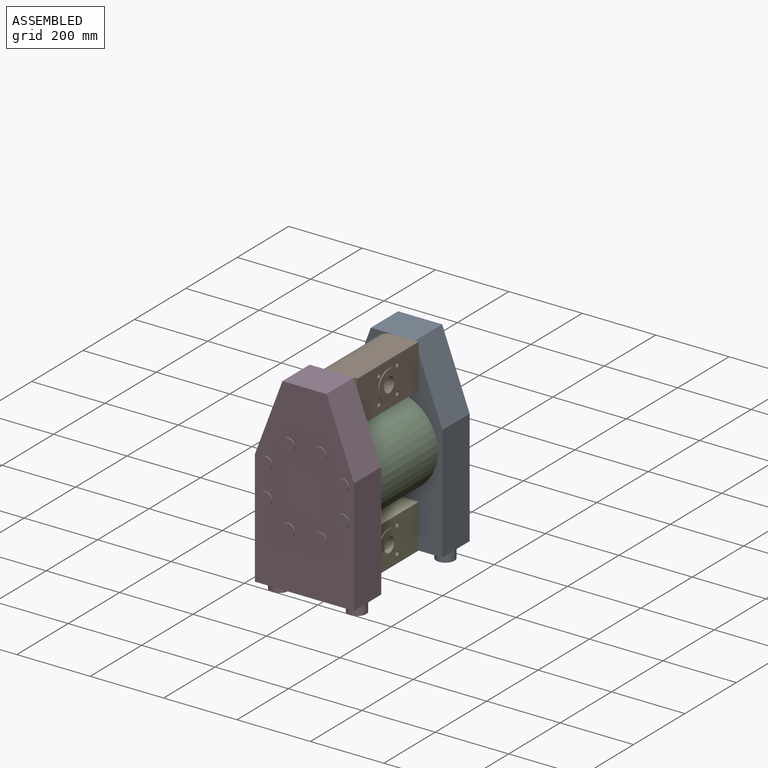
[diagram: assembled view]
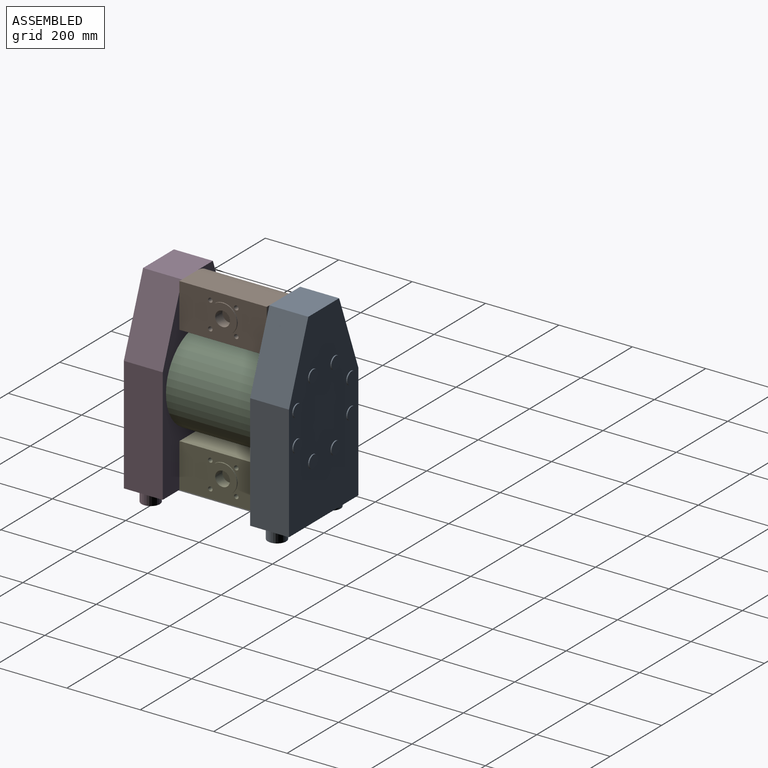
[diagram: assembled view, second angle]
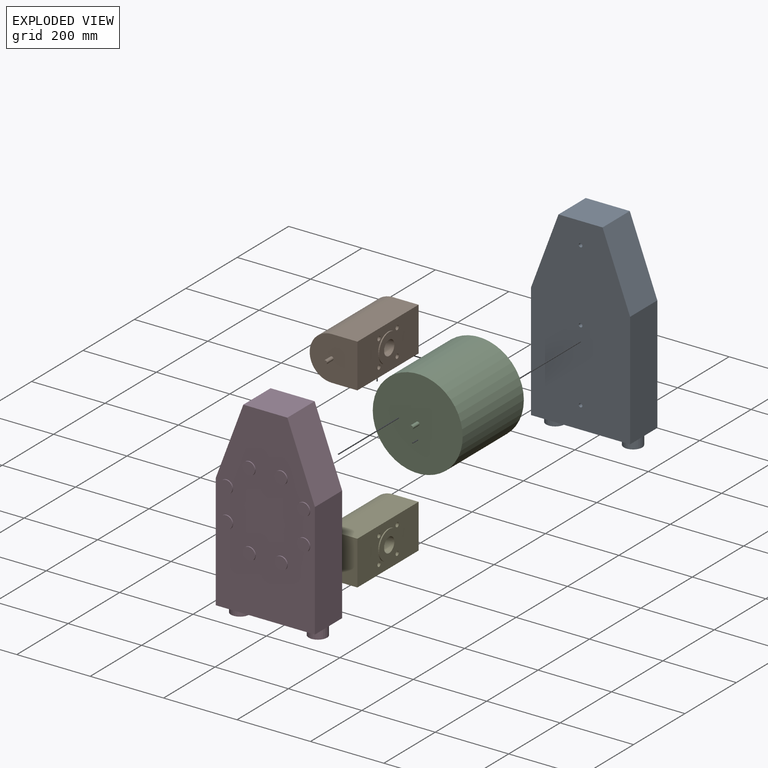
[diagram: exploded view]
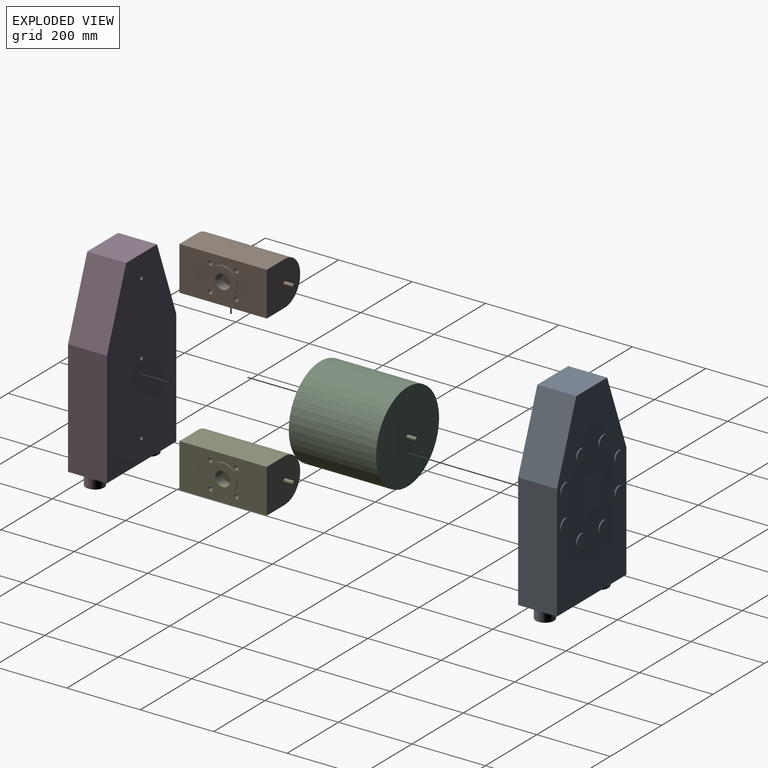
[diagram: exploded view, second angle]
ASSEMBLY  parts=5 mates=8
PART A: 34 faces, bbox 270x109x543 mm
  f0: plane 120x106mm, normal (0,0,1), area 12720mm2, adj f1,f5,f6,f7
  f1: plane 200x106mm, normal (-0.94,0,0.35), area 22641.6mm2, adj f0,f2,f6,f7
  f2: plane 314x106mm, normal (-1,0,0), area 33284mm2, adj f1,f3,f6,f7
  f3: plane 270x106mm, normal (0,0,-1), area 24693mm2, adj f2,f4,f6,f7,f30,f32
  f4: plane 314x106mm, normal (1,0,0), area 33284mm2, adj f3,f5,f6,f7
  f5: plane 200x106mm, normal (0.94,0,0.35), area 22641.6mm2, adj f0,f4,f6,f7
  f6: plane 514x270mm, normal (0,1,0), area 123544.4mm2, adj f0,f1,f2,f3,f4,f5,f24,f26
  f7: plane 514x270mm, normal (0,-1,0), area 116083.1mm2, adj f0,f1,f2,f3,f4,f5,f8,f10
  f8: cylinder r=17.5mm len=35mm, axis (0,1,0), area 329.9mm2, adj f7,f9
  f9: plane 35x35mm, normal (0,-1,0), area 962.1mm2, adj f8
  f10: cylinder r=17.5mm len=35mm, axis (0,1,0), area 329.9mm2, adj f7,f11
  f11: plane 35x35mm, normal (0,-1,0), area 962.1mm2, adj f10
  f12: cylinder r=17.5mm len=35mm, axis (0,1,0), area 329.9mm2, adj f7,f13
  f13: plane 35x35mm, normal (0,-1,0), area 962.1mm2, adj f12
  f14: cylinder r=17.5mm len=35mm, axis (0,1,0), area 329.9mm2, adj f7,f15
  f15: plane 35x35mm, normal (0,-1,0), area 962.1mm2, adj f14
  f16: cylinder r=17.5mm len=35mm, axis (0,1,0), area 329.9mm2, adj f7,f17
  f17: plane 35x35mm, normal (0,-1,0), area 962.1mm2, adj f16
  f18: cylinder r=17.5mm len=35mm, axis (0,1,0), area 329.9mm2, adj f7,f19
  f19: plane 35x35mm, normal (0,-1,0), area 962.1mm2, adj f18
  f20: cylinder r=17.5mm len=35mm, axis (0,1,0), area 329.9mm2, adj f7,f21
  f21: plane 35x35mm, normal (0,-1,0), area 962.1mm2, adj f20
  f22: cylinder r=17.5mm len=35mm, axis (0,1,0), area 329.9mm2, adj f7,f23
  f23: plane 35x35mm, normal (0,-1,0), area 962.1mm2, adj f22
  f24: cylinder r=5mm len=25mm, axis (0,1,0), area 785.4mm2, adj f6,f25
  f25: plane 10x10mm, normal (0,1,0), area 78.5mm2, adj f24
  f26: cylinder r=5mm len=25mm, axis (0,1,0), area 785.4mm2, adj f6,f27
  f27: plane 10x10mm, normal (0,1,0), area 78.5mm2, adj f26
  f28: cylinder r=5mm len=25mm, axis (0,1,0), area 785.4mm2, adj f6,f29
  f29: plane 10x10mm, normal (0,1,0), area 78.5mm2, adj f28
  f30: cylinder r=25mm len=50mm, axis (0,0,1), area 4555.3mm2, adj f3,f31
  f31: plane 50x50mm, normal (0,0,-1), area 1963.5mm2, adj f30
  f32: cylinder r=25mm len=50mm, axis (0,0,1), area 4555.3mm2, adj f3,f33
  f33: plane 50x50mm, normal (0,0,-1), area 1963.5mm2, adj f32
PART B: 22 faces, bbox 120x288x133 mm
  f0: plane 238x70mm, normal (1,0,0), area 16660mm2, adj f1,f3,f4,f5
  f1: plane 238x120mm, normal (0,0,1), area 23329.2mm2, adj f0,f2,f4,f5,f10,f12,f14,f16
  f2: plane 238x70mm, normal (-1,0,0), area 16660mm2, adj f1,f3,f4,f5
  f3: cylinder r=60mm len=238mm, axis (0,1,0), area 44861.9mm2, adj f0,f2,f4,f5
  f4: plane 130x120mm, normal (0,-1,0), area 13976.3mm2, adj f0,f1,f2,f3,f8
  f5: plane 130x120mm, normal (0,1,0), area 13976.3mm2, adj f0,f1,f2,f3,f7
  f6: plane 10x10mm, normal (0,1,0), area 78.5mm2, adj f7
  f7: cylinder r=5mm len=25mm, axis (0,1,0), area 785.4mm2, adj f5,f6
  f8: cylinder r=5mm len=25mm, axis (0,1,0), area 785.4mm2, adj f4,f9
  f9: plane 10x10mm, normal (0,-1,0), area 78.5mm2, adj f8
  f10: cylinder r=6mm len=25mm, axis (0,0,1), area 942.5mm2, adj f1,f11
  f11: plane 12x12mm, normal (0,0,1), area 113.1mm2, adj f10
  f12: cylinder r=6mm len=25mm, axis (0,0,1), area 942.5mm2, adj f1,f13
  f13: plane 12x12mm, normal (0,0,1), area 113.1mm2, adj f12
  f14: cylinder r=6mm len=25mm, axis (0,0,1), area 942.5mm2, adj f1,f15
  f15: plane 12x12mm, normal (0,0,1), area 113.1mm2, adj f14
  f16: cylinder r=6mm len=25mm, axis (0,0,1), area 942.5mm2, adj f1,f17
  f17: plane 12x12mm, normal (0,0,1), area 113.1mm2, adj f16
  f18: cylinder r=39mm len=78mm, axis (0,0,-1), area 735.1mm2, adj f1,f19
  f19: plane 78x78mm, normal (0,0,1), area 3521.7mm2, adj f18,f21
  f20: plane 40x40mm, normal (0,0,1), area 1256.6mm2, adj f21
  f21: cylinder r=20mm len=40mm, axis (0,0,1), area 3518.6mm2, adj f19,f20
PART C: 14 faces, bbox 262.5x288x245 mm
  f0: cylinder r=122.5mm len=245mm, axis (0,1,0), area 182506mm2, adj f1,f2,f7,f9,f10,f11
  f1: plane 245x245mm, normal (0,-1,0), area 47065mm2, adj f0,f5
  f2: plane 245x245mm, normal (0,1,0), area 47065mm2, adj f0,f4
  f3: plane 10x10mm, normal (0,1,0), area 78.5mm2, adj f4
  f4: cylinder r=5mm len=25mm, axis (0,1,0), area 785.4mm2, adj f2,f3
  f5: cylinder r=5mm len=25mm, axis (0,1,0), area 785.4mm2, adj f1,f6
  f6: plane 10x10mm, normal (0,-1,0), area 78.5mm2, adj f5
  f7: cylinder r=15mm len=26.94mm, axis (-1,0,0), area 606.5mm2, adj f0,f10,f11,f12
  f8: cylinder r=6.35mm len=17.66mm, axis (-1,0,0), area 701.5mm2, adj f12,f13
  f9: cylinder r=15mm len=26.94mm, axis (-1,0,0), area 606.5mm2, adj f0,f10,f11,f12
  f10: plane 17.68x13.19mm, normal (0,1,0), area 231.7mm2, adj f0,f7,f9,f12
  f11: plane 17.68x13.19mm, normal (0,-1,0), area 231.7mm2, adj f0,f7,f9,f12
  f12: plane 30x26.94mm, normal (1,0,0), area 553mm2, adj f7,f8,f9,f10,f11
  f13: cylinder r=122.5mm len=12.7mm, axis (0,1,0), area 126.7mm2, adj f8
PART D: same geometry as A
PART E: 22 faces, bbox 120x285x133 mm
  f0: plane 238x120mm, normal (0,0,-1), area 23329.2mm2, adj f1,f3,f4,f5,f10,f12,f14,f16
  f1: plane 238x70mm, normal (1,0,0), area 16660mm2, adj f0,f2,f4,f5
  f2: cylinder r=60mm len=238mm, axis (0,1,0), area 44861.9mm2, adj f1,f3,f4,f5
  f3: plane 238x70mm, normal (-1,0,0), area 16660mm2, adj f0,f2,f4,f5
  f4: plane 130x120mm, normal (0,-1,0), area 13976.3mm2, adj f0,f1,f2,f3,f8
  f5: plane 130x120mm, normal (0,1,0), area 13976.3mm2, adj f0,f1,f2,f3,f7
  f6: plane 10x10mm, normal (0,1,0), area 78.5mm2, adj f7
  f7: cylinder r=5mm len=22mm, axis (0,1,0), area 691.2mm2, adj f5,f6
  f8: cylinder r=5mm len=25mm, axis (0,1,0), area 785.4mm2, adj f4,f9
  f9: plane 10x10mm, normal (0,-1,0), area 78.5mm2, adj f8
  f10: cylinder r=6mm len=25mm, axis (0,0,-1), area 942.5mm2, adj f0,f11
  f11: plane 12x12mm, normal (0,0,-1), area 113.1mm2, adj f10
  f12: cylinder r=6mm len=25mm, axis (0,0,-1), area 942.5mm2, adj f0,f13
  f13: plane 12x12mm, normal (0,0,-1), area 113.1mm2, adj f12
  f14: cylinder r=6mm len=25mm, axis (0,0,-1), area 942.5mm2, adj f0,f15
  f15: plane 12x12mm, normal (0,0,-1), area 113.1mm2, adj f14
  f16: cylinder r=6mm len=25mm, axis (0,0,-1), area 942.5mm2, adj f0,f17
  f17: plane 12x12mm, normal (0,0,-1), area 113.1mm2, adj f16
  f18: cylinder r=39mm len=78mm, axis (0,0,1), area 735.1mm2, adj f0,f19
  f19: plane 78x78mm, normal (0,0,-1), area 3521.7mm2, adj f18,f21
  f20: plane 40x40mm, normal (0,0,-1), area 1256.6mm2, adj f21
  f21: cylinder r=20mm len=40mm, axis (0,0,-1), area 3518.6mm2, adj f19,f20
PLACE A rot(axis=(0,0,1),180deg) t=(-0.74,346.08,1.51)mm
PLACE B rot(axis=(-0.71,0,-0.71),180deg) t=(-197.74,55.08,198.51)mm
PLACE C rot(axis=(0,0,1),180deg) t=(-0.74,55.08,1.51)mm
PLACE D t=(-0.74,2.08,1.51)mm fixed
PLACE E rot(axis=(0.71,0,-0.71),180deg) t=(-197.74,55.08,-195.49)mm
MATE revolute E.f7 <-> D.f28  axis (0,-1,0) through (-0.74,55.08,-195.49)mm
MATE revolute B.f7 <-> D.f26  axis (0,-1,0) through (-0.74,55.08,198.51)mm
MATE revolute A.f28 <-> E.f2  axis (0,-1,0) through (-0.74,293.08,-195.49)mm
MATE revolute A.f26 <-> B.f3  axis (0,-1,0) through (-0.74,293.08,198.51)mm
MATE parallel E.f1 <-> A.f3  axis (0,0,-1) through (34.26,174.08,-255.49)mm
MATE parallel C.f7 <-> A.f4  axis (-1,0,0) through (-140.74,127.6,1.51)mm
MATE planar B.f0 <-> D.f0  axis (0,0,1) through (34.26,174.08,258.51)mm
MATE revolute C.f0 <-> D.f24  axis (0,-1,0) through (-0.74,55.08,1.51)mm
